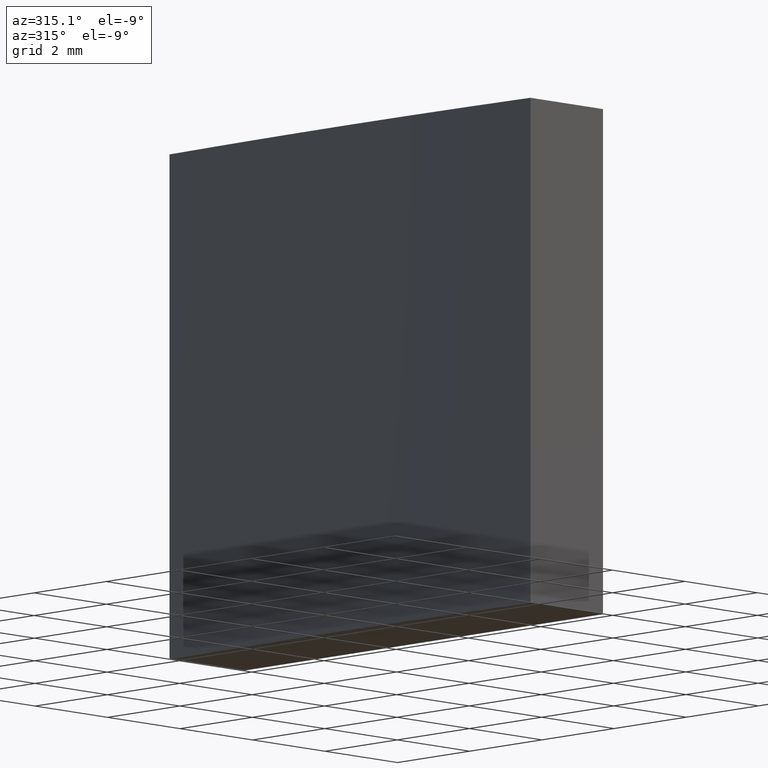
[diagram: clean part render]
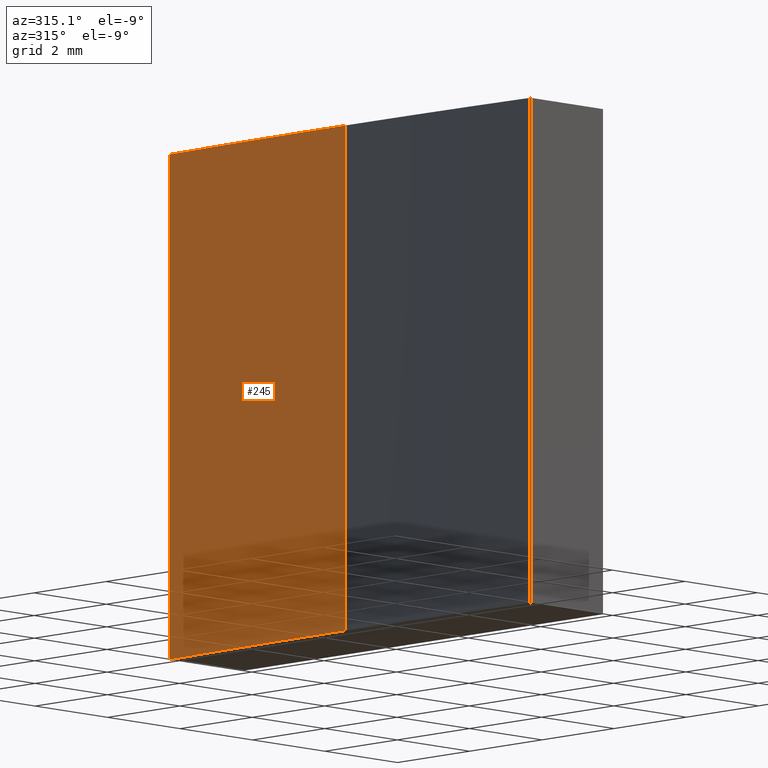
[diagram: same view with one face highlighted and labeled with its STEP entity id]
A machine part, auxiliary view. The second image highlights one B-rep face of the part: STEP entity #245.
In plain terms, the highlighted cylindrical surface (partial cylindrical patch) has radius 103.4 mm, axis along (-0, -0, -1).
Its self-contained STEP definition (entity closure, byte-faithful):
#8 = AXIS2_PLACEMENT_3D ( 'NONE', #268, #106, #17 ) ;
#14 = ORIENTED_EDGE ( 'NONE', *, *, #24, .F. ) ;
#17 = DIRECTION ( 'NONE',  ( 1.000000000000000000, 0.000000000000000000, 0.000000000000000000 ) ) ;
#20 = CARTESIAN_POINT ( 'NONE',  ( 0.000000000000000000, 0.000000000000000000, 10.00000000000000000 ) ) ;
#24 = EDGE_CURVE ( 'NONE', #153, #186, #138, .T. ) ;
#32 = ORIENTED_EDGE ( 'NONE', *, *, #160, .T. ) ;
#38 = LINE ( 'NONE', #200, #50 ) ;
#40 = CYLINDRICAL_SURFACE ( 'NONE', #89, 103.4000000000000057 ) ;
#44 = EDGE_CURVE ( 'NONE', #220, #153, #227, .T. ) ;
#50 = VECTOR ( 'NONE', #159, 1000.000000000000000 ) ;
#74 = VERTEX_POINT ( 'NONE', #155 ) ;
#76 = ORIENTED_EDGE ( 'NONE', *, *, #229, .T. ) ;
#80 = EDGE_LOOP ( 'NONE', ( #14, #190, #76, #32 ) ) ;
#84 = DIRECTION ( 'NONE',  ( -0.000000000000000000, -0.000000000000000000, -1.000000000000000000 ) ) ;
#89 = AXIS2_PLACEMENT_3D ( 'NONE', #20, #84, #164 ) ;
#102 = CARTESIAN_POINT ( 'NONE',  ( -103.4000000000000057, 0.000000000000000000, 0.000000000000000000 ) ) ;
#106 = DIRECTION ( 'NONE',  ( 0.000000000000000000, 0.000000000000000000, 1.000000000000000000 ) ) ;
#119 = CARTESIAN_POINT ( 'NONE',  ( -103.4000000000000057, 0.000000000000000000, 10.00000000000000000 ) ) ;
#122 = DIRECTION ( 'NONE',  ( -0.000000000000000000, -0.000000000000000000, -1.000000000000000000 ) ) ;
#136 = CIRCLE ( 'NONE', #8, 103.4000000000000057 ) ;
#138 = LINE ( 'NONE', #119, #265 ) ;
#142 = CARTESIAN_POINT ( 'NONE',  ( -103.4000000000000057, 0.000000000000000000, 10.00000000000000000 ) ) ;
#153 = VERTEX_POINT ( 'NONE', #142 ) ;
#155 = CARTESIAN_POINT ( 'NONE',  ( -103.2790394997939529, 5.000000000000000888, 0.000000000000000000 ) ) ;
#159 = DIRECTION ( 'NONE',  ( -0.000000000000000000, -0.000000000000000000, -1.000000000000000000 ) ) ;
#160 = EDGE_CURVE ( 'NONE', #74, #186, #136, .T. ) ;
#164 = DIRECTION ( 'NONE',  ( -1.000000000000000000, 0.000000000000000000, 0.000000000000000000 ) ) ;
#165 = DIRECTION ( 'NONE',  ( 1.000000000000000000, 0.000000000000000000, 0.000000000000000000 ) ) ;
#181 = DIRECTION ( 'NONE',  ( 0.000000000000000000, 0.000000000000000000, 1.000000000000000000 ) ) ;
#186 = VERTEX_POINT ( 'NONE', #102 ) ;
#190 = ORIENTED_EDGE ( 'NONE', *, *, #44, .F. ) ;
#200 = CARTESIAN_POINT ( 'NONE',  ( -103.2790394997939529, 5.000000000000000888, 10.00000000000000000 ) ) ;
#201 = CARTESIAN_POINT ( 'NONE',  ( 0.000000000000000000, 0.000000000000000000, 10.00000000000000000 ) ) ;
#215 = AXIS2_PLACEMENT_3D ( 'NONE', #201, #181, #165 ) ;
#220 = VERTEX_POINT ( 'NONE', #224 ) ;
#224 = CARTESIAN_POINT ( 'NONE',  ( -103.2790394997939529, 5.000000000000000888, 10.00000000000000000 ) ) ;
#227 = CIRCLE ( 'NONE', #215, 103.4000000000000057 ) ;
#229 = EDGE_CURVE ( 'NONE', #220, #74, #38, .T. ) ;
#245 = ADVANCED_FACE ( 'NONE', ( #254 ), #40, .T. ) ;
#254 = FACE_OUTER_BOUND ( 'NONE', #80, .T. ) ;
#265 = VECTOR ( 'NONE', #122, 1000.000000000000000 ) ;
#268 = CARTESIAN_POINT ( 'NONE',  ( 0.000000000000000000, 0.000000000000000000, 0.000000000000000000 ) ) ;